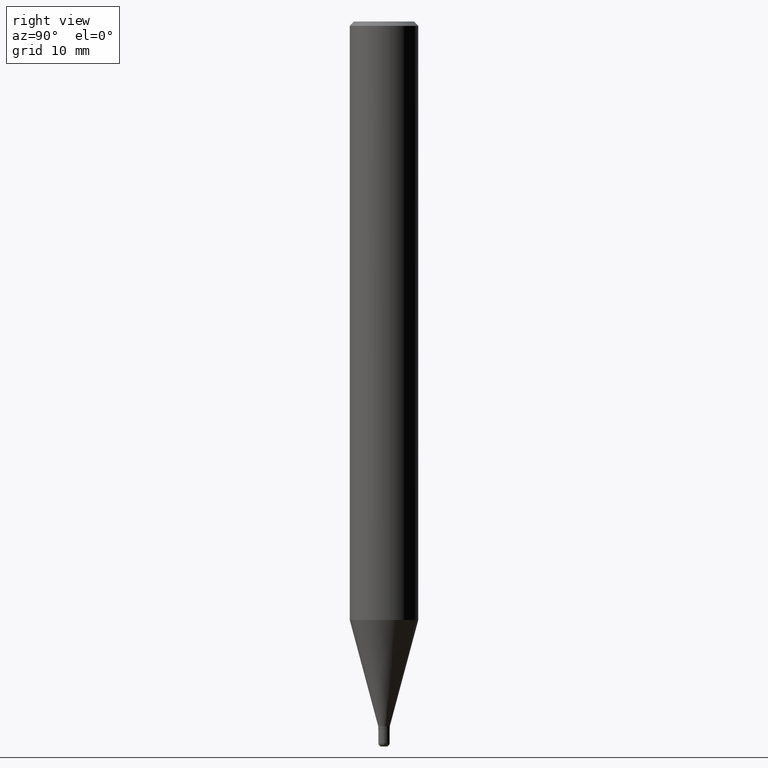
[diagram: clean part render]
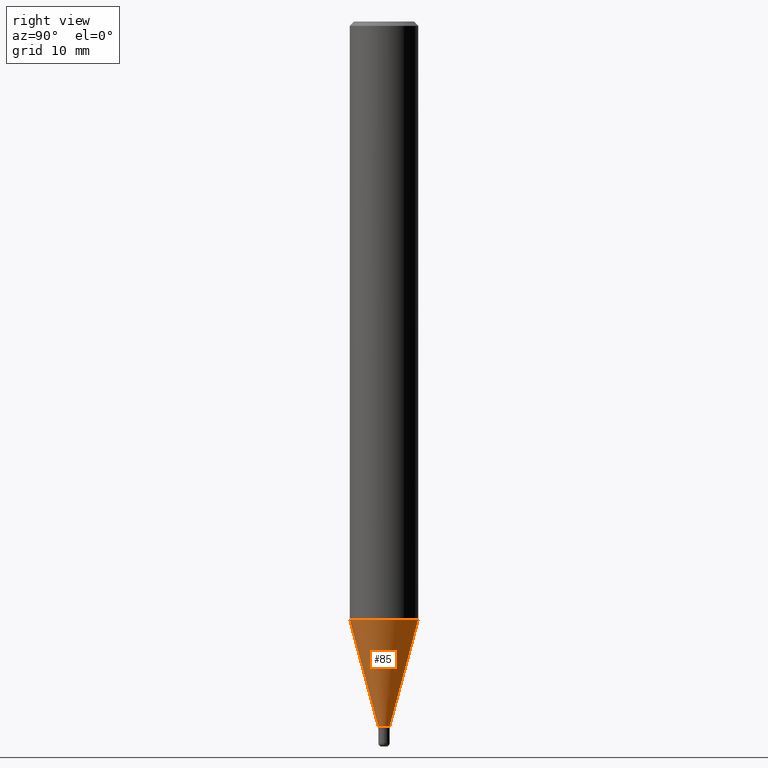
[diagram: same view with one face highlighted and labeled with its STEP entity id]
A machine part, right view. The second image highlights one B-rep face of the part: STEP entity #85.
In plain terms, the highlighted conical surface has half-angle 15 deg.
Its self-contained STEP definition (entity closure, byte-faithful):
#25 = VERTEX_POINT ( 'NONE', #104 ) ;
#34 = EDGE_CURVE ( 'NONE', #515, #209, #385, .T. ) ;
#39 = CARTESIAN_POINT ( 'NONE',  ( 1.399769189447991143E-16, 0.01969999999999150903, -2.430899999999999839 ) ) ;
#62 = FACE_OUTER_BOUND ( 'NONE', #125, .T. ) ;
#85 = ADVANCED_FACE ( 'NONE', ( #62 ), #446, .T. ) ;
#90 = CARTESIAN_POINT ( 'NONE',  ( 5.046988425594275791E-29, -7.204740632929544117E-15, -2.063666200535222650 ) ) ;
#104 = CARTESIAN_POINT ( 'NONE',  ( -1.375643647503599512E-16, -0.01970000000000847809, -2.430899999999999839 ) ) ;
#115 = VERTEX_POINT ( 'NONE', #378 ) ;
#125 = EDGE_LOOP ( 'NONE', ( #196, #360, #440, #295 ) ) ;
#126 = LINE ( 'NONE', #39, #418 ) ;
#129 = LINE ( 'NONE', #252, #232 ) ;
#150 = CARTESIAN_POINT ( 'NONE',  ( -8.246878922346975783E-16, -0.1181000000000072270, -2.063666200535221762 ) ) ;
#160 = AXIS2_PLACEMENT_3D ( 'NONE', #176, #335, #374 ) ;
#170 = EDGE_CURVE ( 'NONE', #115, #209, #126, .T. ) ;
#176 = CARTESIAN_POINT ( 'NONE',  ( 5.945110774501791456E-29, -8.486839586773326720E-15, -2.430899999999999839 ) ) ;
#196 = ORIENTED_EDGE ( 'NONE', *, *, #256, .T. ) ;
#209 = VERTEX_POINT ( 'NONE', #369 ) ;
#232 = VECTOR ( 'NONE', #373, 39.37007874015748854 ) ;
#252 = CARTESIAN_POINT ( 'NONE',  ( -1.375643647503599512E-16, -0.01970000000000847809, -2.430899999999999839 ) ) ;
#253 = DIRECTION ( 'NONE',  ( -2.445641850549916020E-29, 3.491233529463707792E-15, 1.000000000000000000 ) ) ;
#256 = EDGE_CURVE ( 'NONE', #25, #115, #400, .T. ) ;
#257 = DIRECTION ( 'NONE',  ( -6.982962677686265922E-15, -1.000000000000000000, 4.626330217890369336E-15 ) ) ;
#295 = ORIENTED_EDGE ( 'NONE', *, *, #409, .F. ) ;
#335 = DIRECTION ( 'NONE',  ( -2.445641850549916020E-29, 3.491233529463707792E-15, 1.000000000000000000 ) ) ;
#360 = ORIENTED_EDGE ( 'NONE', *, *, #170, .T. ) ;
#364 = DIRECTION ( 'NONE',  ( 1.839019923739594004E-15, 0.2588190451025240701, 0.9659258262890673130 ) ) ;
#365 = AXIS2_PLACEMENT_3D ( 'NONE', #416, #253, #454 ) ;
#369 = CARTESIAN_POINT ( 'NONE',  ( 8.391509709327284870E-16, 0.1180999999999927941, -2.063666200535223094 ) ) ;
#373 = DIRECTION ( 'NONE',  ( -1.807323732225323828E-15, -0.2588190451025172978, 0.9659258262890690894 ) ) ;
#374 = DIRECTION ( 'NONE',  ( -6.982962677686265922E-15, -1.000000000000000000, 0.000000000000000000 ) ) ;
#378 = CARTESIAN_POINT ( 'NONE',  ( 4.895639449387641704E-16, 0.01969999999999150903, -2.430899999999999839 ) ) ;
#380 = DIRECTION ( 'NONE',  ( -2.445641850549916020E-29, 3.491233529463707792E-15, 1.000000000000000000 ) ) ;
#385 = CIRCLE ( 'NONE', #487, 0.1180999999999999966 ) ;
#400 = CIRCLE ( 'NONE', #160, 0.01969999999999999182 ) ;
#409 = EDGE_CURVE ( 'NONE', #25, #515, #129, .T. ) ;
#416 = CARTESIAN_POINT ( 'NONE',  ( 5.945110774501791456E-29, -8.486839586773326720E-15, -2.430899999999999839 ) ) ;
#418 = VECTOR ( 'NONE', #364, 39.37007874015748854 ) ;
#440 = ORIENTED_EDGE ( 'NONE', *, *, #34, .F. ) ;
#446 = CONICAL_SURFACE ( 'NONE', #365, 0.01969999999999999182, 0.2617993877991494078 ) ;
#454 = DIRECTION ( 'NONE',  ( -6.982962677686265922E-15, -1.000000000000000000, 0.000000000000000000 ) ) ;
#487 = AXIS2_PLACEMENT_3D ( 'NONE', #90, #380, #257 ) ;
#515 = VERTEX_POINT ( 'NONE', #150 ) ;